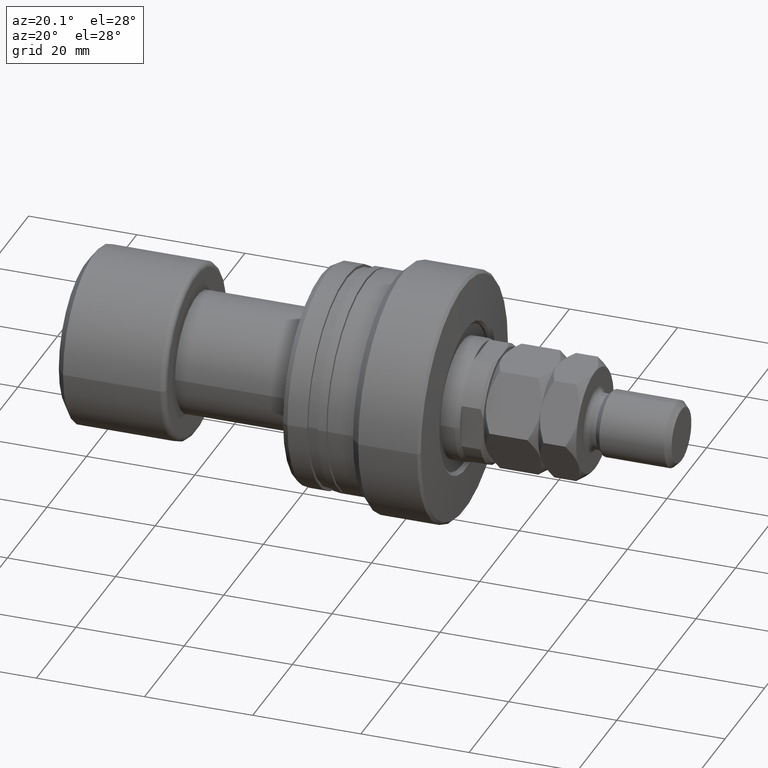
[diagram: clean part render]
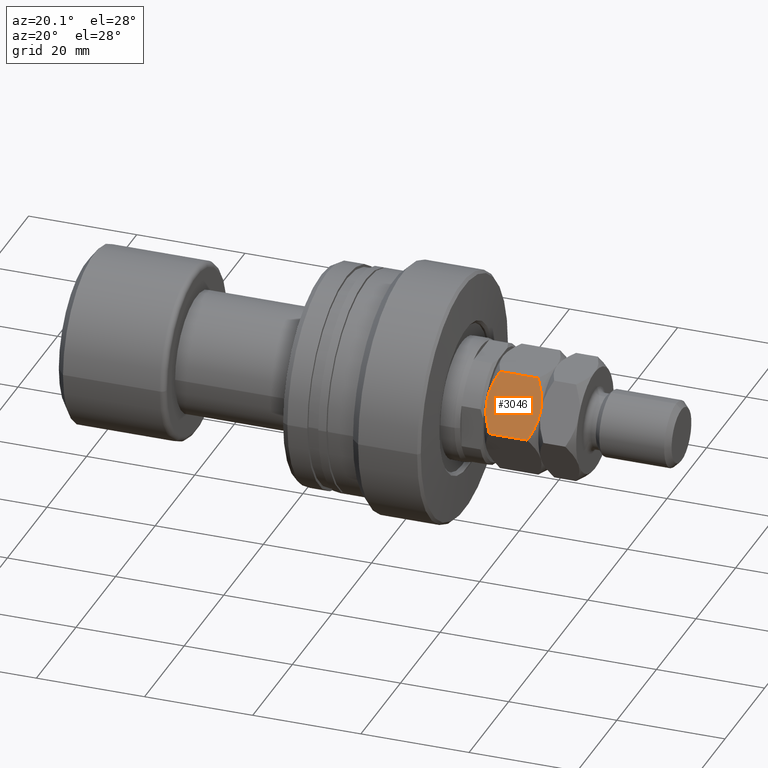
[diagram: same view with one face highlighted and labeled with its STEP entity id]
A machine part, auxiliary view. The second image highlights one B-rep face of the part: STEP entity #3046.
In plain terms, the highlighted planar face has unit normal (-0, 0.866, -0.5).
Its self-contained STEP definition (entity closure, byte-faithful):
#64 = VECTOR ( 'NONE', #325, 1000.000000000000000 ) ;
#134 = CARTESIAN_POINT ( 'NONE',  ( -3.001642536556159024E-15, -10.96965511460288667, 8.530344885397118659 ) ) ;
#306 = EDGE_CURVE ( 'NONE', #1852, #2319, #616, .T. ) ;
#325 = DIRECTION ( 'NONE',  ( -0.000000000000000000, -0.000000000000000000, -1.000000000000000000 ) ) ;
#444 = CARTESIAN_POINT ( 'NONE',  ( -7.993405681187616629, -6.354660192827335408, 9.325825117528722785 ) ) ;
#491 = CARTESIAN_POINT ( 'NONE',  ( -2.946964139499808652E-15, -10.96965511460288667, 1.469655114602881563 ) ) ;
#552 = CARTESIAN_POINT ( 'NONE',  ( -3.923784602134047894, -8.704257018318688921, 10.00000000000000178 ) ) ;
#555 = CARTESIAN_POINT ( 'NONE',  ( -4.333978297711725602, -8.467431577757036365, 9.136662057716388954E-16 ) ) ;
#615 = CARTESIAN_POINT ( 'NONE',  ( -4.749999999999998224, -8.227241335952168555, 10.00000000000000000 ) ) ;
#616 = B_SPLINE_CURVE_WITH_KNOTS ( 'NONE', 3,
 ( #3998, #1543, #2780, #3713, #1938, #3500 ),
 .UNSPECIFIED., .F., .F.,
 ( 4, 2, 4 ),
 ( 0.005685775058177687177, 0.008508623398180320194, 0.01133147173818295321 ),
 .UNSPECIFIED. ) ;
#638 = ORIENTED_EDGE ( 'NONE', *, *, #2544, .F. ) ;
#734 = CARTESIAN_POINT ( 'NONE',  ( -6.408273631871771236, -7.269836608200942685, 9.820258145287965590 ) ) ;
#783 = DIRECTION ( 'NONE',  ( -0.8660254037844387076, 0.4999999999999998890, 0.000000000000000000 ) ) ;
#812 = CARTESIAN_POINT ( 'NONE',  ( -3.911732050025008789, -8.711215562523268119, 0.03770576873300111181 ) ) ;
#828 = VERTEX_POINT ( 'NONE', #3213 ) ;
#836 = CARTESIAN_POINT ( 'NONE',  ( -2.946964139499808652E-15, -10.96965511460288667, 1.469655114602881563 ) ) ;
#864 = ORIENTED_EDGE ( 'NONE', *, *, #306, .F. ) ;
#906 = EDGE_CURVE ( 'NONE', #926, #2661, #3363, .T. ) ;
#926 = VERTEX_POINT ( 'NONE', #2628 ) ;
#1181 = B_SPLINE_CURVE_WITH_KNOTS ( 'NONE', 3,
 ( #3008, #552, #2397, #3937, #2922, #134 ),
 .UNSPECIFIED., .F., .F.,
 ( 4, 2, 4 ),
 ( 0.005685775058177695851, 0.008508623398180325398, 0.01133147173818295494 ),
 .UNSPECIFIED. ) ;
#1183 = EDGE_CURVE ( 'NONE', #828, #2169, #1877, .T. ) ;
#1246 = VECTOR ( 'NONE', #2721, 1000.000000000000000 ) ;
#1484 = ORIENTED_EDGE ( 'NONE', *, *, #1183, .F. ) ;
#1543 = CARTESIAN_POINT ( 'NONE',  ( -5.576215397865947665, -7.750225653585648189, 8.690558038829119507E-16 ) ) ;
#1608 = ORIENTED_EDGE ( 'NONE', *, *, #3040, .F. ) ;
#1653 = EDGE_CURVE ( 'NONE', #926, #2319, #1827, .T. ) ;
#1688 = CARTESIAN_POINT ( 'NONE',  ( -5.588267949974986770, -7.743267109381074320, 9.962294231267001976 ) ) ;
#1730 = CARTESIAN_POINT ( 'NONE',  ( -9.500000000000000000, -5.484827557301445999, 8.530344885397115107 ) ) ;
#1827 = LINE ( 'NONE', #2412, #1246 ) ;
#1852 = VERTEX_POINT ( 'NONE', #2778 ) ;
#1877 = LINE ( 'NONE', #3110, #64 ) ;
#1938 = CARTESIAN_POINT ( 'NONE',  ( -8.755994125639036341, -5.914379549142410930, 1.040103122761829813 ) ) ;
#2005 = CARTESIAN_POINT ( 'NONE',  ( -0.7448681452486625165, -10.53960529043279770, 1.039605290432793705 ) ) ;
#2152 = B_SPLINE_CURVE_WITH_KNOTS ( 'NONE', 3,
 ( #491, #2005, #2712, #2644, #2318, #812, #555, #3639 ),
 .UNSPECIFIED., .F., .F.,
 ( 4, 2, 2, 4 ),
 ( 2.544312669954764994E-07, 0.002843014744722341131, 0.004264394901450013937, 0.005685775058177687177 ),
 .UNSPECIFIED. ) ;
#2169 = VERTEX_POINT ( 'NONE', #836 ) ;
#2302 = CARTESIAN_POINT ( 'NONE',  ( -6.809745054052672053, -7.038046974532858435, 9.716537861568809831 ) ) ;
#2318 = CARTESIAN_POINT ( 'NONE',  ( -3.091726368128225211, -9.184646063703393537, 0.1797418547120354371 ) ) ;
#2319 = VERTEX_POINT ( 'NONE', #3492 ) ;
#2338 = CARTESIAN_POINT ( 'NONE',  ( -8.755131854751340370, -5.914877381471537632, 8.960394709567209404 ) ) ;
#2378 = CARTESIAN_POINT ( 'NONE',  ( -9.500000000000000000, -5.484827557301445999, 10.00000000000000000 ) ) ;
#2397 = CARTESIAN_POINT ( 'NONE',  ( -3.111617971331826382, -9.173161641239186537, 9.854124384224533628 ) ) ;
#2412 = CARTESIAN_POINT ( 'NONE',  ( -9.500000000000000000, -5.484827557301445999, 10.00000000000000000 ) ) ;
#2416 = ORIENTED_EDGE ( 'NONE', *, *, #906, .F. ) ;
#2544 = EDGE_CURVE ( 'NONE', #2169, #1852, #2152, .T. ) ;
#2628 = CARTESIAN_POINT ( 'NONE',  ( -9.500000000000000000, -5.484827557301445999, 8.530344885397115107 ) ) ;
#2639 = FACE_OUTER_BOUND ( 'NONE', #2870, .T. ) ;
#2644 = CARTESIAN_POINT ( 'NONE',  ( -2.690254945947328391, -9.416435697371479563, 0.2834621384311885595 ) ) ;
#2661 = VERTEX_POINT ( 'NONE', #615 ) ;
#2712 = CARTESIAN_POINT ( 'NONE',  ( -1.506594318812384703, -10.09982247907699993, 0.6741748824712766597 ) ) ;
#2721 = DIRECTION ( 'NONE',  ( -0.000000000000000000, -0.000000000000000000, -1.000000000000000000 ) ) ;
#2778 = CARTESIAN_POINT ( 'NONE',  ( -4.749999999999998224, -8.227241335952168555, 0.000000000000000000 ) ) ;
#2780 = CARTESIAN_POINT ( 'NONE',  ( -6.388382028668172730, -7.281321030665154126, 0.1458756157754690086 ) ) ;
#2870 = EDGE_LOOP ( 'NONE', ( #638, #1484, #1608, #2416, #2990, #864 ) ) ;
#2878 = AXIS2_PLACEMENT_3D ( 'NONE', #2378, #3570, #783 ) ;
#2922 = CARTESIAN_POINT ( 'NONE',  ( -0.7440058743609659908, -10.54010312276191996, 8.959896877238168855 ) ) ;
#2990 = ORIENTED_EDGE ( 'NONE', *, *, #1653, .T. ) ;
#3008 = CARTESIAN_POINT ( 'NONE',  ( -4.749999999999998224, -8.227241335952168555, 10.00000000000000000 ) ) ;
#3040 = EDGE_CURVE ( 'NONE', #2661, #828, #1181, .T. ) ;
#3046 = ADVANCED_FACE ( 'NONE', ( #2639 ), #3550, .F. ) ;
#3110 = CARTESIAN_POINT ( 'NONE',  ( -3.035766082959412415E-15, -10.96965511460288667, 10.00000000000000000 ) ) ;
#3213 = CARTESIAN_POINT ( 'NONE',  ( -3.001642536556159024E-15, -10.96965511460288667, 8.530344885397118659 ) ) ;
#3274 = CARTESIAN_POINT ( 'NONE',  ( -4.749999999999998224, -8.227241335952168555, 10.00000000000000000 ) ) ;
#3363 = B_SPLINE_CURVE_WITH_KNOTS ( 'NONE', 3,
 ( #1730, #2338, #444, #2302, #734, #1688, #3519, #3274 ),
 .UNSPECIFIED., .F., .F.,
 ( 4, 2, 2, 4 ),
 ( 2.544312669948822529E-07, 0.002843014744722344167, 0.004264394901450020009, 0.005685775058177695851 ),
 .UNSPECIFIED. ) ;
#3492 = CARTESIAN_POINT ( 'NONE',  ( -9.500000000000000000, -5.484827557301445999, 1.469655114602884893 ) ) ;
#3500 = CARTESIAN_POINT ( 'NONE',  ( -9.500000000000000000, -5.484827557301445999, 1.469655114602884893 ) ) ;
#3519 = CARTESIAN_POINT ( 'NONE',  ( -5.166021702288271733, -7.987051094147306074, 10.00000000000000000 ) ) ;
#3550 = PLANE ( 'NONE',  #2878 ) ;
#3570 = DIRECTION ( 'NONE',  ( 0.4999999999999998890, 0.8660254037844387076, -0.000000000000000000 ) ) ;
#3639 = CARTESIAN_POINT ( 'NONE',  ( -4.749999999999998224, -8.227241335952168555, 0.000000000000000000 ) ) ;
#3713 = CARTESIAN_POINT ( 'NONE',  ( -7.990178599141542826, -6.356523349515333265, 0.6716369694512676070 ) ) ;
#3937 = CARTESIAN_POINT ( 'NONE',  ( -1.509821400858457840, -10.09795932238900029, 9.328363030548734613 ) ) ;
#3998 = CARTESIAN_POINT ( 'NONE',  ( -4.749999999999998224, -8.227241335952168555, 0.000000000000000000 ) ) ;